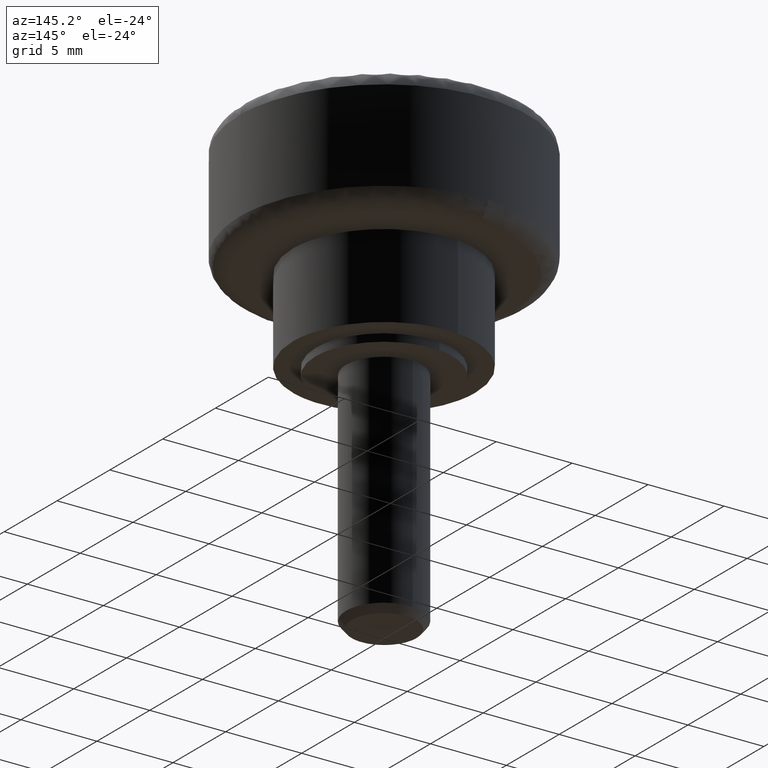
[diagram: clean part render]
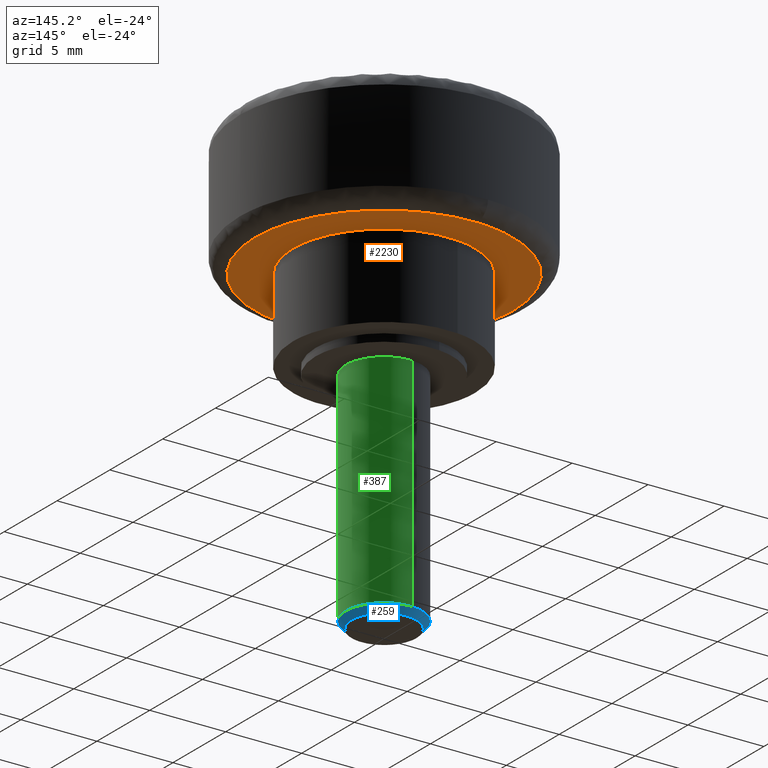
[diagram: same view with three faces highlighted in distinct colors, each labeled with its STEP entity id]
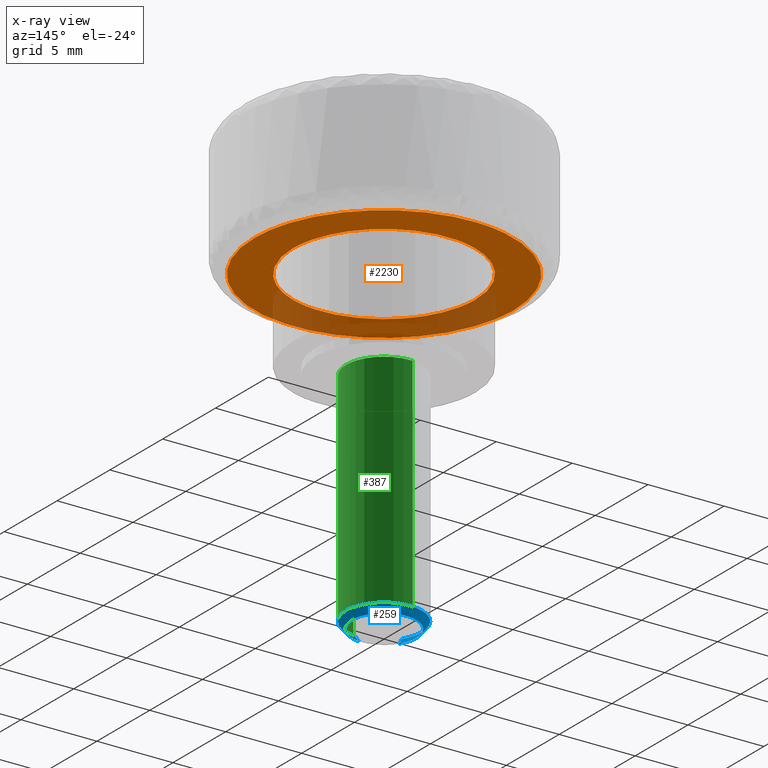
[diagram: x-ray of the same camera — body ghosted, the three highlighted faces saturated]
A machine part, auxiliary view with three faces highlighted in distinct colors.
The next image is the same camera in x-ray (body ghosted, the three faces saturated) — at least one of them is partly hidden behind the body in this view.
Their STEP definitions:

[orange] entity #2230 — the highlighted face is a freeform B-spline surface patch.
#1442=CARTESIAN_POINT('',(-0.708205366383430,5.958057163121691,6.0));
#1443=VERTEX_POINT('',#1442);
#1449=CARTESIAN_POINT('',(6.0,0.0,6.0));
#1450=VERTEX_POINT('',#1449);
#1451=CARTESIAN_POINT('',(-0.708205366383430,5.958057163121691,6.0));
#1452=CARTESIAN_POINT('',(-0.355344675915004,6.0,6.0));
#1453=CARTESIAN_POINT('',(0.0,6.0,6.0));
#1454=CARTESIAN_POINT('',(6.0,6.0,6.0));
#1455=CARTESIAN_POINT('',(6.0,0.0,6.0));
#1463=(BOUNDED_CURVE()B_SPLINE_CURVE(2,(#1451,#1452,#1453,#1454,#1455),.UNSPECIFIED.,.F.,.U.)B_SPLINE_CURVE_WITH_KNOTS((3,2,3),(0.229562475873221,0.250000000000000,0.500000000000000),.UNSPECIFIED.)CURVE()GEOMETRIC_REPRESENTATION_ITEM()RATIONAL_B_SPLINE_CURVE((0.956026758808833,0.976055951095720,1.0,0.707106781186548,1.0))REPRESENTATION_ITEM(''));
#1464=EDGE_CURVE('',#1443,#1450,#1463,.T.);
#1466=CARTESIAN_POINT('',(0.366286239399409,-5.988809096206152,6.0));
#1467=VERTEX_POINT('',#1466);
#1468=CARTESIAN_POINT('',(6.0,0.0,6.0));
#1469=CARTESIAN_POINT('',(6.0,-5.644241120493286,6.0));
#1470=CARTESIAN_POINT('',(0.366286239399409,-5.988809096206152,6.000000000000002));
#1478=(BOUNDED_CURVE()B_SPLINE_CURVE(2,(#1468,#1469,#1470),.UNSPECIFIED.,.F.,.U.)B_SPLINE_CURVE_WITH_KNOTS((3,3),(0.500000000000000,0.739333106236567),.UNSPECIFIED.)CURVE()GEOMETRIC_REPRESENTATION_ITEM()RATIONAL_B_SPLINE_CURVE((1.0,0.719603824583000,0.976072350281231))REPRESENTATION_ITEM(''));
#1479=EDGE_CURVE('',#1450,#1467,#1478,.T.);
#1553=CARTESIAN_POINT('',(-6.0,0.0,6.0));
#1554=VERTEX_POINT('',#1553);
#1555=CARTESIAN_POINT('',(0.366286239399409,-5.988809096206152,6.000000000000002));
#1556=CARTESIAN_POINT('',(0.183314073880142,-6.0,6.0));
#1557=CARTESIAN_POINT('',(0.0,-6.0,6.0));
#1558=CARTESIAN_POINT('',(-6.0,-6.0,6.0));
#1559=CARTESIAN_POINT('',(-6.0,0.0,6.0));
#1567=(BOUNDED_CURVE()B_SPLINE_CURVE(2,(#1555,#1556,#1557,#1558,#1559),.UNSPECIFIED.,.F.,.U.)B_SPLINE_CURVE_WITH_KNOTS((3,2,3),(0.739333106236567,0.750000000000000,1.0),.UNSPECIFIED.)CURVE()GEOMETRIC_REPRESENTATION_ITEM()RATIONAL_B_SPLINE_CURVE((0.976072350281231,0.987502956603548,1.0,0.707106781186548,1.0))REPRESENTATION_ITEM(''));
#1568=EDGE_CURVE('',#1467,#1554,#1567,.T.);
#1570=CARTESIAN_POINT('',(-6.0,0.0,6.0));
#1571=CARTESIAN_POINT('',(-6.000000000000002,5.329047230571159,6.000000000000002));
#1572=CARTESIAN_POINT('',(-0.708205366383430,5.958057163121691,5.999999999999999));
#1580=(BOUNDED_CURVE()B_SPLINE_CURVE(2,(#1570,#1571,#1572),.UNSPECIFIED.,.F.,.U.)B_SPLINE_CURVE_WITH_KNOTS((3,3),(0.0,0.229562475873221),.UNSPECIFIED.)CURVE()GEOMETRIC_REPRESENTATION_ITEM()RATIONAL_B_SPLINE_CURVE((1.0,0.731050830090827,0.956026758808833))REPRESENTATION_ITEM(''));
#1581=EDGE_CURVE('',#1554,#1443,#1580,.T.);
#1858=CARTESIAN_POINT('',(-0.213605811302491,8.497315609394798,6.0));
#1859=VERTEX_POINT('',#1858);
#1860=CARTESIAN_POINT('',(8.500000000000000,0.0,6.0));
#1861=VERTEX_POINT('',#1860);
#1862=CARTESIAN_POINT('',(-0.213605811302491,8.497315609394798,6.0));
#1863=CARTESIAN_POINT('',(-0.106819773070610,8.500000000000000,6.0));
#1864=CARTESIAN_POINT('',(0.0,8.500000000000000,6.0));
#1865=CARTESIAN_POINT('',(8.500000000000002,8.500000000000002,6.0));
#1866=CARTESIAN_POINT('',(8.500000000000000,0.0,6.0));
#1874=(BOUNDED_CURVE()B_SPLINE_CURVE(2,(#1862,#1863,#1864,#1865,#1866),.UNSPECIFIED.,.F.,.U.)B_SPLINE_CURVE_WITH_KNOTS((3,2,3),(0.245579891768907,0.250000000000000,0.500000000000000),.UNSPECIFIED.)CURVE()GEOMETRIC_REPRESENTATION_ITEM()RATIONAL_B_SPLINE_CURVE((0.989826157679540,0.994821521090765,1.0,0.707106781186548,1.0))REPRESENTATION_ITEM(''));
#1875=EDGE_CURVE('',#1859,#1861,#1874,.T.);
#1893=CARTESIAN_POINT('',(-8.497315609372430,-0.213605811300439,6.0));
#1894=VERTEX_POINT('',#1893);
#1908=CARTESIAN_POINT('',(8.500000000000000,0.0,6.0));
#1909=CARTESIAN_POINT('',(8.500000000000002,-8.500000000000002,6.0));
#1910=CARTESIAN_POINT('',(0.0,-8.500000000000000,6.0));
#1911=CARTESIAN_POINT('',(-8.289011947495787,-8.500000000000000,6.0));
#1912=CARTESIAN_POINT('',(-8.497315609372430,-0.213605811300439,6.000000000000001));
#1920=(BOUNDED_CURVE()B_SPLINE_CURVE(2,(#1908,#1909,#1910,#1911,#1912),.UNSPECIFIED.,.F.,.U.)B_SPLINE_CURVE_WITH_KNOTS((3,2,3),(0.500000000000000,0.750000000000000,0.995579891768969),.UNSPECIFIED.)CURVE()GEOMETRIC_REPRESENTATION_ITEM()RATIONAL_B_SPLINE_CURVE((1.0,0.707106781186548,1.0,0.712285260095709,0.989826157679681))REPRESENTATION_ITEM(''));
#1921=EDGE_CURVE('',#1861,#1894,#1920,.T.);
#1943=CARTESIAN_POINT('',(-8.500000000000000,0.0,6.0));
#1944=VERTEX_POINT('',#1943);
#1945=CARTESIAN_POINT('',(-8.500000000000000,0.0,6.0));
#1946=CARTESIAN_POINT('',(-8.500000000000000,8.289011947492831,6.000000000000001));
#1947=CARTESIAN_POINT('',(-0.213605811302491,8.497315609394798,6.0));
#1955=(BOUNDED_CURVE()B_SPLINE_CURVE(2,(#1945,#1946,#1947),.UNSPECIFIED.,.F.,.U.)B_SPLINE_CURVE_WITH_KNOTS((3,3),(0.0,0.245579891768907),.UNSPECIFIED.)CURVE()GEOMETRIC_REPRESENTATION_ITEM()RATIONAL_B_SPLINE_CURVE((1.0,0.712285260095783,0.989826157679540))REPRESENTATION_ITEM(''));
#1956=EDGE_CURVE('',#1944,#1859,#1955,.T.);
#1958=CARTESIAN_POINT('',(-8.497315609372430,-0.213605811300439,6.0));
#1959=CARTESIAN_POINT('',(-8.500000000000002,-0.106819773069121,6.0));
#1960=CARTESIAN_POINT('',(-8.500000000000000,0.0,6.0));
#1968=(BOUNDED_CURVE()B_SPLINE_CURVE(2,(#1958,#1959,#1960),.UNSPECIFIED.,.F.,.U.)B_SPLINE_CURVE_WITH_KNOTS((3,3),(0.995579891768968,1.0),.UNSPECIFIED.)CURVE()GEOMETRIC_REPRESENTATION_ITEM()RATIONAL_B_SPLINE_CURVE((0.989826157679679,0.994821521090837,1.0))REPRESENTATION_ITEM(''));
#1969=EDGE_CURVE('',#1894,#1944,#1968,.T.);
#2213=CARTESIAN_POINT('',(-9.349149967050700,-9.348310970078479,6.0));
#2214=CARTESIAN_POINT('',(9.349150423026234,-9.348310970078479,6.0));
#2215=CARTESIAN_POINT('',(-9.349149967050700,9.346298411774823,6.0));
#2216=CARTESIAN_POINT('',(9.349150423026234,9.346298411774823,6.0));
#2217=B_SPLINE_SURFACE_WITH_KNOTS('',1,1,((#2213,#2215),(#2214,#2216)),.UNSPECIFIED.,.F.,.F.,.U.,(2,2),(2,2),(0.0,18.698300390076930),(0.0,18.694609381853301),.UNSPECIFIED.);
#2218=ORIENTED_EDGE('',*,*,#1956,.T.);
#2219=ORIENTED_EDGE('',*,*,#1875,.T.);
#2220=ORIENTED_EDGE('',*,*,#1921,.T.);
#2221=ORIENTED_EDGE('',*,*,#1969,.T.);
#2222=EDGE_LOOP('',(#2218,#2219,#2220,#2221));
#2223=FACE_OUTER_BOUND('',#2222,.T.);
#2224=ORIENTED_EDGE('',*,*,#1479,.F.);
#2225=ORIENTED_EDGE('',*,*,#1464,.F.);
#2226=ORIENTED_EDGE('',*,*,#1581,.F.);
#2227=ORIENTED_EDGE('',*,*,#1568,.F.);
#2228=EDGE_LOOP('',(#2224,#2225,#2226,#2227));
#2229=FACE_BOUND('',#2228,.T.);
#2230=ADVANCED_FACE('',(#2223,#2229),#2217,.F.);

[blue] entity #259 — the highlighted face is a freeform B-spline surface patch.
#58=CARTESIAN_POINT('',(0.196147334908420,-2.492292948724283,-14.550000499379410));
#59=VERTEX_POINT('',#58);
#60=CARTESIAN_POINT('',(-2.107600122159219,-1.344626983618632,-14.549999999999780));
#61=VERTEX_POINT('',#60);
#77=CARTESIAN_POINT('',(-1.791460103825453,-1.142932936093323,-14.999999999998529));
#78=VERTEX_POINT('',#77);
#79=CARTESIAN_POINT('',(-1.791460103825453,-1.142932936093323,-14.999999999998529));
#80=CARTESIAN_POINT('',(-2.107600122159219,-1.344626983618632,-14.549999999999780));
#81=QUASI_UNIFORM_CURVE('',1,(#79,#80),.UNSPECIFIED.,.F.,.U.);
#82=EDGE_CURVE('',#78,#61,#81,.T.);
#84=CARTESIAN_POINT('',(0.166725578425542,-2.118449334183064,-14.999999999999440));
#85=VERTEX_POINT('',#84);
#101=CARTESIAN_POINT('',(0.166725578425542,-2.118449334183064,-14.999999999999440));
#102=CARTESIAN_POINT('',(0.196147334908420,-2.492292948724283,-14.550000499379410));
#103=QUASI_UNIFORM_CURVE('',1,(#101,#102),.UNSPECIFIED.,.F.,.U.);
#104=EDGE_CURVE('',#85,#59,#103,.T.);
#109=CARTESIAN_POINT('',(0.165990024399223,-2.109103234179149,-15.011250000000000));
#110=CARTESIAN_POINT('',(2.275093258578373,-1.943113209779926,-15.011249999999999));
#111=CARTESIAN_POINT('',(2.109103234179149,0.165990024399223,-15.011250000000000));
#112=CARTESIAN_POINT('',(1.943113209779926,2.275093258578373,-15.011249999999999));
#113=CARTESIAN_POINT('',(-0.165990024399223,2.109103234179149,-15.011250000000000));
#114=CARTESIAN_POINT('',(-2.275093258578373,1.943113209779926,-15.011249999999999));
#115=CARTESIAN_POINT('',(-2.109103234179149,-0.165990024399223,-15.011250000000000));
#116=CARTESIAN_POINT('',(-2.067659644325226,-0.692580762085226,-15.011249999999999));
#117=CARTESIAN_POINT('',(-1.783556603378746,-1.137890584884624,-15.011250000000006));
#118=CARTESIAN_POINT('',(0.196901682192623,-2.501873086836649,-14.538468750000000));
#119=CARTESIAN_POINT('',(2.698774769029272,-2.304971404644027,-14.538468750000000));
#120=CARTESIAN_POINT('',(2.501873086836649,0.196901682192623,-14.538468750000000));
#121=CARTESIAN_POINT('',(2.304971404644027,2.698774769029272,-14.538468750000000));
#122=CARTESIAN_POINT('',(-0.196901682192623,2.501873086836649,-14.538468750000000));
#123=CARTESIAN_POINT('',(-2.698774769029272,2.304971404644027,-14.538468750000000));
#124=CARTESIAN_POINT('',(-2.501873086836649,-0.196901682192623,-14.538468750000000));
#125=CARTESIAN_POINT('',(-2.452711623141022,-0.821557305039276,-14.538468750000000));
#126=CARTESIAN_POINT('',(-2.115701210130545,-1.349795393583775,-14.538468749999995));
#134=(BOUNDED_SURFACE()B_SPLINE_SURFACE(2,1,((#109,#118),(#110,#119),(#111,#120),(#112,#121),(#113,#122),(#114,#123),(#115,#124),(#116,#125),(#117,#126)),.UNSPECIFIED.,.F.,.F.,.U.)B_SPLINE_SURFACE_WITH_KNOTS((3,2,2,2,3),(2,2),(0.0,4.158056957534645,8.316113915069289,12.474170872603930,13.804749099015019),(0.0,1.0),.UNSPECIFIED.)GEOMETRIC_REPRESENTATION_ITEM()RATIONAL_B_SPLINE_SURFACE(((1.0,1.0),(0.707106781186548,0.707106781186548),(1.0,1.0),(0.707106781186548,0.707106781186548),(1.0,1.0),(0.707106781186548,0.707106781186548),(1.0,1.0),(0.906274169979695,0.906274169979695),(0.872532871172386,0.872532871172386)))REPRESENTATION_ITEM('')SURFACE());
#135=CARTESIAN_POINT('',(-2.500000000000000,0.0,-14.550000000000001));
#136=VERTEX_POINT('',#135);
#137=CARTESIAN_POINT('',(-2.107600122159220,-1.344626983618632,-14.549999999999772));
#138=CARTESIAN_POINT('',(-2.500000000000000,-0.729570138452059,-14.549999999999997));
#139=CARTESIAN_POINT('',(-2.500000000000000,0.0,-14.550000000000001));
#147=(BOUNDED_CURVE()B_SPLINE_CURVE(2,(#137,#138,#139),.UNSPECIFIED.,.F.,.U.)B_SPLINE_CURVE_WITH_KNOTS((3,3),(0.907950112627131,1.0),.UNSPECIFIED.)CURVE()GEOMETRIC_REPRESENTATION_ITEM()RATIONAL_B_SPLINE_CURVE((0.863729296954665,0.892156848783779,1.0))REPRESENTATION_ITEM(''));
#148=EDGE_CURVE('',#61,#136,#147,.T.);
#149=ORIENTED_EDGE('',*,*,#148,.T.);
#150=CARTESIAN_POINT('',(-0.152617927655554,2.495337205298389,-14.549999999999990));
#151=VERTEX_POINT('',#150);
#152=CARTESIAN_POINT('',(-2.500000000000000,0.0,-14.550000000000001));
#153=CARTESIAN_POINT('',(-2.499999999999999,2.351768397631653,-14.550000000000006));
#154=CARTESIAN_POINT('',(-0.152617927655554,2.495337205298389,-14.549999999999999));
#162=(BOUNDED_CURVE()B_SPLINE_CURVE(2,(#152,#153,#154),.UNSPECIFIED.,.F.,.U.)B_SPLINE_CURVE_WITH_KNOTS((3,3),(0.0,0.239333198808815),.UNSPECIFIED.)CURVE()GEOMETRIC_REPRESENTATION_ITEM()RATIONAL_B_SPLINE_CURVE((1.0,0.719603716127865,0.976072548681511))REPRESENTATION_ITEM(''));
#163=EDGE_CURVE('',#136,#151,#162,.T.);
#164=ORIENTED_EDGE('',*,*,#163,.T.);
#165=CARTESIAN_POINT('',(2.500000000000000,0.0,-14.550000000000001));
#166=VERTEX_POINT('',#165);
#167=CARTESIAN_POINT('',(-0.152617927655554,2.495337205298389,-14.549999999999999));
#168=CARTESIAN_POINT('',(-0.076380192859528,2.500000000000000,-14.549999999999997));
#169=CARTESIAN_POINT('',(0.0,2.500000000000000,-14.550000000000001));
#170=CARTESIAN_POINT('',(2.500000000000000,2.500000000000000,-14.550000000000002));
#171=CARTESIAN_POINT('',(2.500000000000000,0.0,-14.550000000000001));
#179=(BOUNDED_CURVE()B_SPLINE_CURVE(2,(#167,#168,#169,#170,#171),.UNSPECIFIED.,.F.,.U.)B_SPLINE_CURVE_WITH_KNOTS((3,2,3),(0.239333198808815,0.250000000000000,0.500000000000000),.UNSPECIFIED.)CURVE()GEOMETRIC_REPRESENTATION_ITEM()RATIONAL_B_SPLINE_CURVE((0.976072548681511,0.987503065058683,1.0,0.707106781186548,1.0))REPRESENTATION_ITEM(''));
#180=EDGE_CURVE('',#151,#166,#179,.T.);
#181=ORIENTED_EDGE('',*,*,#180,.T.);
#182=CARTESIAN_POINT('',(0.295085586654308,-2.482523815907690,-14.550000000000001));
#183=VERTEX_POINT('',#182);
#184=CARTESIAN_POINT('',(2.500000000000000,0.0,-14.550000000000001));
#185=CARTESIAN_POINT('',(2.500000000000000,-2.220436314856048,-14.550000000000001));
#186=CARTESIAN_POINT('',(0.295085586654308,-2.482523815907690,-14.550000000000001));
#194=(BOUNDED_CURVE()B_SPLINE_CURVE(2,(#184,#185,#186),.UNSPECIFIED.,.F.,.U.)B_SPLINE_CURVE_WITH_KNOTS((3,3),(0.500000000000000,0.729562473513953),.UNSPECIFIED.)CURVE()GEOMETRIC_REPRESENTATION_ITEM()RATIONAL_B_SPLINE_CURVE((1.0,0.731050832854881,0.956026754184572))REPRESENTATION_ITEM(''));
#195=EDGE_CURVE('',#166,#183,#194,.T.);
#196=ORIENTED_EDGE('',*,*,#195,.T.);
#197=CARTESIAN_POINT('',(0.295085586654308,-2.482523815907690,-14.549999999999997));
#198=CARTESIAN_POINT('',(0.245713439342416,-2.488392444019606,-14.549999999999999));
#199=CARTESIAN_POINT('',(0.196147334908420,-2.492292948724284,-14.550000499379415));
#207=(BOUNDED_CURVE()B_SPLINE_CURVE(2,(#197,#198,#199),.UNSPECIFIED.,.F.,.U.)B_SPLINE_CURVE_WITH_KNOTS((3,3),(0.729562473513954,0.736331351773499),.UNSPECIFIED.)CURVE()GEOMETRIC_REPRESENTATION_ITEM()RATIONAL_B_SPLINE_CURVE((0.956026754184573,0.962660393383085,0.969723462898646))REPRESENTATION_ITEM(''));
#208=EDGE_CURVE('',#183,#59,#207,.T.);
#209=ORIENTED_EDGE('',*,*,#208,.T.);
#210=ORIENTED_EDGE('',*,*,#104,.F.);
#211=CARTESIAN_POINT('',(2.125000000000000,0.0,-15.0));
#212=VERTEX_POINT('',#211);
#213=CARTESIAN_POINT('',(2.125000000000000,0.0,-15.0));
#214=CARTESIAN_POINT('',(2.125000000000000,-1.964329794766561,-14.999999999999995));
#215=CARTESIAN_POINT('',(0.166725578425542,-2.118449334183064,-14.999999999999439));
#223=(BOUNDED_CURVE()B_SPLINE_CURVE(2,(#213,#214,#215),.UNSPECIFIED.,.F.,.U.)B_SPLINE_CURVE_WITH_KNOTS((3,3),(0.500000000000000,0.736331300632147),.UNSPECIFIED.)CURVE()GEOMETRIC_REPRESENTATION_ITEM()RATIONAL_B_SPLINE_CURVE((1.0,0.723120658605924,0.969723356170521))REPRESENTATION_ITEM(''));
#224=EDGE_CURVE('',#212,#85,#223,.T.);
#225=ORIENTED_EDGE('',*,*,#224,.F.);
#226=CARTESIAN_POINT('',(-2.125000000000000,0.0,-15.0));
#227=VERTEX_POINT('',#226);
#228=CARTESIAN_POINT('',(-2.125000000000000,0.0,-15.0));
#229=CARTESIAN_POINT('',(-2.125000000000001,2.125000000000001,-14.999999999999995));
#230=CARTESIAN_POINT('',(0.0,2.125000000000000,-15.0));
#231=CARTESIAN_POINT('',(2.125000000000001,2.125000000000001,-14.999999999999995));
#232=CARTESIAN_POINT('',(2.125000000000000,0.0,-15.0));
#240=(BOUNDED_CURVE()B_SPLINE_CURVE(2,(#228,#229,#230,#231,#232),.UNSPECIFIED.,.F.,.U.)B_SPLINE_CURVE_WITH_KNOTS((3,2,3),(0.0,0.250000000000000,0.500000000000000),.UNSPECIFIED.)CURVE()GEOMETRIC_REPRESENTATION_ITEM()RATIONAL_B_SPLINE_CURVE((1.0,0.707106781186548,1.0,0.707106781186548,1.0))REPRESENTATION_ITEM(''));
#241=EDGE_CURVE('',#227,#212,#240,.T.);
#242=ORIENTED_EDGE('',*,*,#241,.F.);
#243=CARTESIAN_POINT('',(-1.791460103825453,-1.142932936093323,-14.999999999998529));
#244=CARTESIAN_POINT('',(-2.125000000000000,-0.620134617706016,-15.0));
#245=CARTESIAN_POINT('',(-2.125000000000000,0.0,-15.0));
#253=(BOUNDED_CURVE()B_SPLINE_CURVE(2,(#243,#244,#245),.UNSPECIFIED.,.F.,.U.)B_SPLINE_CURVE_WITH_KNOTS((3,3),(0.907950112624249,1.0),.UNSPECIFIED.)CURVE()GEOMETRIC_REPRESENTATION_ITEM()RATIONAL_B_SPLINE_CURVE((0.863729296952885,0.892156848780402,1.0))REPRESENTATION_ITEM(''));
#254=EDGE_CURVE('',#78,#227,#253,.T.);
#255=ORIENTED_EDGE('',*,*,#254,.F.);
#256=ORIENTED_EDGE('',*,*,#82,.T.);
#257=EDGE_LOOP('',(#149,#164,#181,#196,#209,#210,#225,#242,#255,#256));
#258=FACE_OUTER_BOUND('',#257,.T.);
#259=ADVANCED_FACE('',(#258),#134,.T.);

[green] entity #387 — the highlighted face is a freeform B-spline surface patch.
#150=CARTESIAN_POINT('',(-0.152617927655554,2.495337205298389,-14.549999999999990));
#151=VERTEX_POINT('',#150);
#165=CARTESIAN_POINT('',(2.500000000000000,0.0,-14.550000000000001));
#166=VERTEX_POINT('',#165);
#167=CARTESIAN_POINT('',(-0.152617927655554,2.495337205298389,-14.549999999999999));
#168=CARTESIAN_POINT('',(-0.076380192859528,2.500000000000000,-14.549999999999997));
#169=CARTESIAN_POINT('',(0.0,2.500000000000000,-14.550000000000001));
#170=CARTESIAN_POINT('',(2.500000000000000,2.500000000000000,-14.550000000000002));
#171=CARTESIAN_POINT('',(2.500000000000000,0.0,-14.550000000000001));
#179=(BOUNDED_CURVE()B_SPLINE_CURVE(2,(#167,#168,#169,#170,#171),.UNSPECIFIED.,.F.,.U.)B_SPLINE_CURVE_WITH_KNOTS((3,2,3),(0.239333198808815,0.250000000000000,0.500000000000000),.UNSPECIFIED.)CURVE()GEOMETRIC_REPRESENTATION_ITEM()RATIONAL_B_SPLINE_CURVE((0.976072548681511,0.987503065058683,1.0,0.707106781186548,1.0))REPRESENTATION_ITEM(''));
#180=EDGE_CURVE('',#151,#166,#179,.T.);
#182=CARTESIAN_POINT('',(0.295085586654308,-2.482523815907690,-14.550000000000001));
#183=VERTEX_POINT('',#182);
#184=CARTESIAN_POINT('',(2.500000000000000,0.0,-14.550000000000001));
#185=CARTESIAN_POINT('',(2.500000000000000,-2.220436314856048,-14.550000000000001));
#186=CARTESIAN_POINT('',(0.295085586654308,-2.482523815907690,-14.550000000000001));
#194=(BOUNDED_CURVE()B_SPLINE_CURVE(2,(#184,#185,#186),.UNSPECIFIED.,.F.,.U.)B_SPLINE_CURVE_WITH_KNOTS((3,3),(0.500000000000000,0.729562473513953),.UNSPECIFIED.)CURVE()GEOMETRIC_REPRESENTATION_ITEM()RATIONAL_B_SPLINE_CURVE((1.0,0.731050832854881,0.956026754184572))REPRESENTATION_ITEM(''));
#195=EDGE_CURVE('',#166,#183,#194,.T.);
#283=CARTESIAN_POINT('',(0.295085586654308,-2.482523815907690,5.394914E-016));
#284=VERTEX_POINT('',#283);
#285=CARTESIAN_POINT('',(0.295085586654308,-2.482523815907690,5.394914E-016));
#286=CARTESIAN_POINT('',(0.295085586654308,-2.482523815907690,-14.550000000000001));
#287=QUASI_UNIFORM_CURVE('',1,(#285,#286),.UNSPECIFIED.,.F.,.U.);
#288=EDGE_CURVE('',#284,#183,#287,.T.);
#307=CARTESIAN_POINT('',(-0.152617969792443,2.495337202721302,-3.330669E-016));
#308=VERTEX_POINT('',#307);
#322=CARTESIAN_POINT('',(-0.152617969792443,2.495337202721302,-3.330669E-016));
#323=CARTESIAN_POINT('',(-0.152617927655554,2.495337205298389,-14.549999999999990));
#324=QUASI_UNIFORM_CURVE('',1,(#322,#323),.UNSPECIFIED.,.F.,.U.);
#325=EDGE_CURVE('',#308,#151,#324,.T.);
#333=CARTESIAN_POINT('',(-0.152621348837143,2.495336996054667,0.363750000000000));
#334=CARTESIAN_POINT('',(2.342715647217524,2.647958344891809,0.363750000000000));
#335=CARTESIAN_POINT('',(2.495336996054667,0.152621348837143,0.363750000000000));
#336=CARTESIAN_POINT('',(2.639465491831319,-2.203858727098751,0.363750000000000));
#337=CARTESIAN_POINT('',(0.295085586641896,-2.482523815909166,0.363750000000000));
#338=CARTESIAN_POINT('',(-0.152621348837143,2.495336996054667,-14.922843750000000));
#339=CARTESIAN_POINT('',(2.342715647217524,2.647958344891809,-14.922843750000002));
#340=CARTESIAN_POINT('',(2.495336996054667,0.152621348837143,-14.922843750000000));
#341=CARTESIAN_POINT('',(2.639465491831319,-2.203858727098751,-14.922843750000004));
#342=CARTESIAN_POINT('',(0.295085586641896,-2.482523815909166,-14.922843750000009));
#350=(BOUNDED_SURFACE()B_SPLINE_SURFACE(2,1,((#333,#338),(#334,#339),(#335,#340),(#336,#341),(#337,#342)),.UNSPECIFIED.,.F.,.F.,.U.)B_SPLINE_SURFACE_WITH_KNOTS((3,2,3),(2,2),(0.0,4.142135623730949,8.118585822512660),(0.0,15.286593750000010),.UNSPECIFIED.)GEOMETRIC_REPRESENTATION_ITEM()RATIONAL_B_SPLINE_SURFACE(((1.0,1.0),(0.707106781186548,0.707106781186548),(1.0,1.0),(0.718822509939086,0.718822509939086),(0.977505800795127,0.977505800795127)))REPRESENTATION_ITEM('')SURFACE());
#351=ORIENTED_EDGE('',*,*,#195,.F.);
#352=ORIENTED_EDGE('',*,*,#180,.F.);
#353=ORIENTED_EDGE('',*,*,#325,.F.);
#354=CARTESIAN_POINT('',(2.500000000000000,0.0,0.0));
#355=VERTEX_POINT('',#354);
#356=CARTESIAN_POINT('',(-0.152617969792443,2.495337202721302,-3.330669E-016));
#357=CARTESIAN_POINT('',(-0.076380213987042,2.499999999999999,0.0));
#358=CARTESIAN_POINT('',(0.0,2.500000000000000,0.0));
#359=CARTESIAN_POINT('',(2.500000000000000,2.500000000000000,0.0));
#360=CARTESIAN_POINT('',(2.500000000000000,0.0,0.0));
#368=(BOUNDED_CURVE()B_SPLINE_CURVE(2,(#356,#357,#358,#359,#360),.UNSPECIFIED.,.F.,.U.)B_SPLINE_CURVE_WITH_KNOTS((3,2,3),(0.739333195895145,0.750000000000000,1.0),.UNSPECIFIED.)CURVE()GEOMETRIC_REPRESENTATION_ITEM()RATIONAL_B_SPLINE_CURVE((0.976072542436949,0.987503061645106,1.0,0.707106781186548,1.0))REPRESENTATION_ITEM(''));
#369=EDGE_CURVE('',#308,#355,#368,.T.);
#370=ORIENTED_EDGE('',*,*,#369,.T.);
#371=CARTESIAN_POINT('',(2.500000000000000,0.0,0.0));
#372=CARTESIAN_POINT('',(2.500000000000000,-2.220436314856062,0.0));
#373=CARTESIAN_POINT('',(0.295085586654308,-2.482523815907690,5.394914E-016));
#381=(BOUNDED_CURVE()B_SPLINE_CURVE(2,(#371,#372,#373),.UNSPECIFIED.,.F.,.U.)B_SPLINE_CURVE_WITH_KNOTS((3,3),(0.0,0.229562473513954),.UNSPECIFIED.)CURVE()GEOMETRIC_REPRESENTATION_ITEM()RATIONAL_B_SPLINE_CURVE((1.0,0.731050832854880,0.956026754184574))REPRESENTATION_ITEM(''));
#382=EDGE_CURVE('',#355,#284,#381,.T.);
#383=ORIENTED_EDGE('',*,*,#382,.T.);
#384=ORIENTED_EDGE('',*,*,#288,.T.);
#385=EDGE_LOOP('',(#351,#352,#353,#370,#383,#384));
#386=FACE_OUTER_BOUND('',#385,.T.);
#387=ADVANCED_FACE('',(#386),#350,.T.);